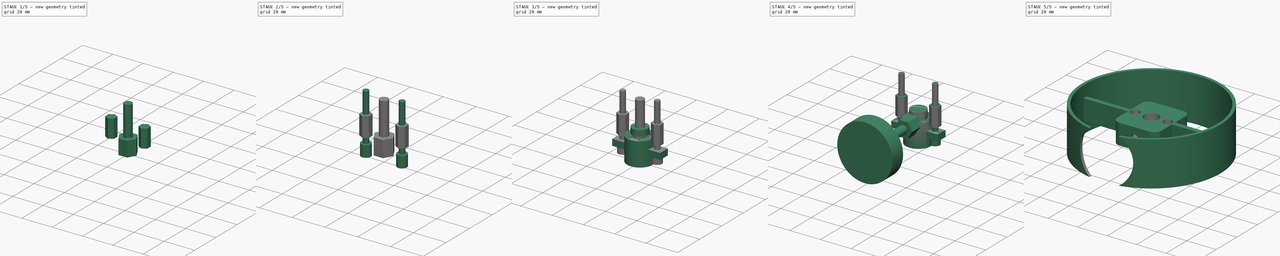
[diagram: build sequence overview — one tinted view per stage of 5, left to right]
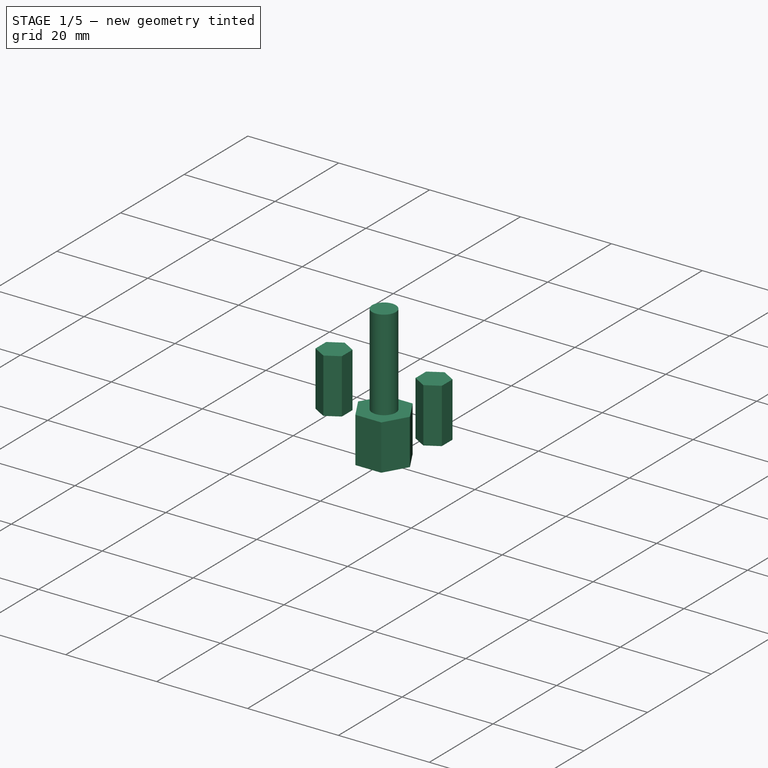
[diagram: stage 1 of 5 — iso view after this stage's code; geometry added in this stage tinted green]
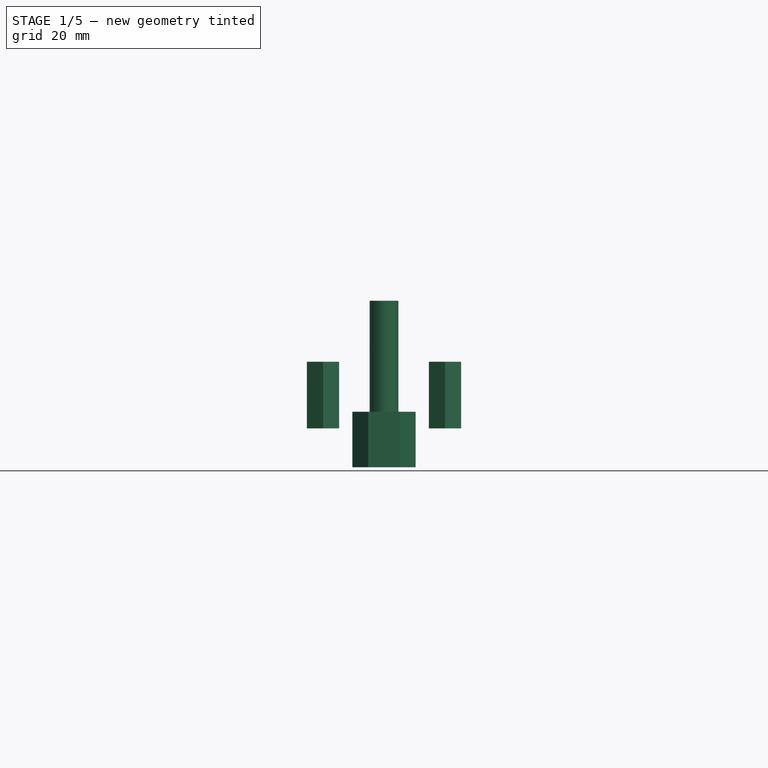
[diagram: stage 1 of 5 — front view after this stage's code; geometry added in this stage tinted green]
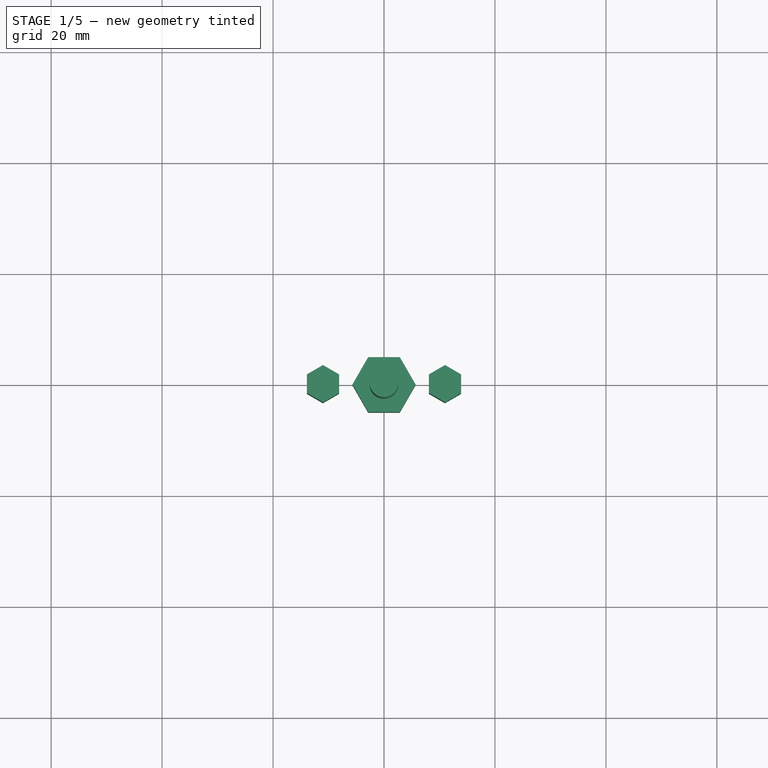
[diagram: stage 1 of 5 — top view after this stage's code; geometry added in this stage tinted green]
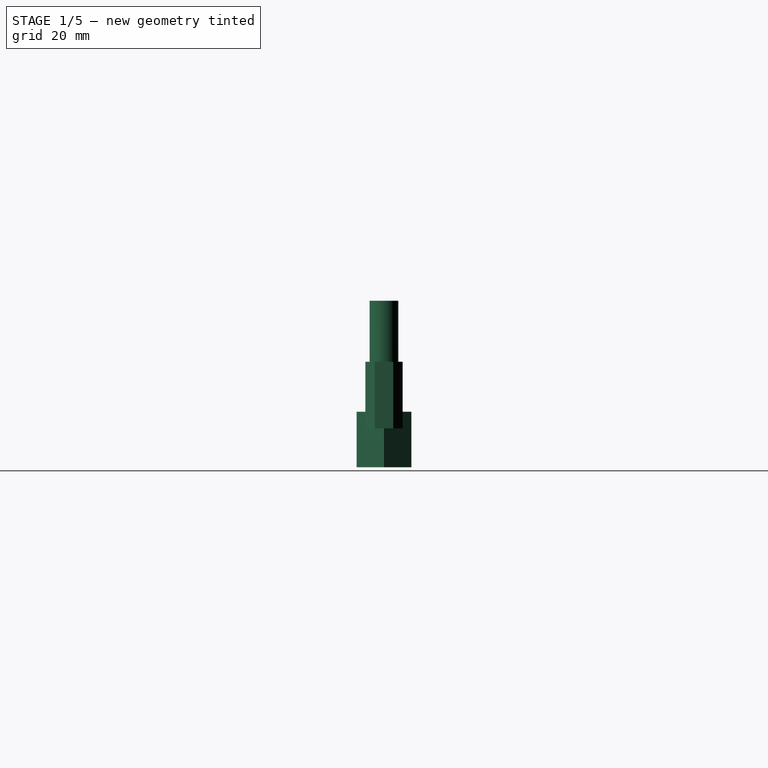
[diagram: stage 1 of 5 — right view after this stage's code; geometry added in this stage tinted green]
FCSTD DOCUMENT  (FreeCAD 0.16R6458 (Git))
Label: Art56MotorCoverRing
License: All rights reserved
LicenseURL: http://en.wikipedia.org/wiki/All_rights_reserved
objects: Part::FeaturePython×8, Part::Cylinder×6, Part::MultiFuse×4, Part::Prism×2, Sketcher::SketchObject×2, PartDesign::Pad×2, Part::Box×1, Part::Cut×1, App::DocumentObjectGroup×1
note: 28 computed .brp shape members not serialized (recipe doc carries the construction recipe); baked Part::Feature solids carry a one-line shape summary decoded from their .brp

FEATURE [Part::Prism] Prism  label="M3Nut"
  Circumradius = 3.35
  Height = 12
  Polygon = 6
FEATURE [Part::FeaturePython] Clone139  label="Clone of M3Nut005"  # Draft clone (typed FeaturePython)
  Objects = -> [Prism]
  Placement = pos=(11,0,7) rot=(0,0,1;0.523599rad)
  Scale = (1,1,1)
FEATURE [Part::FeaturePython] Clone140  label="Clone of M3Nut006"  # Draft clone (typed FeaturePython)
  Objects = -> [Prism]
  Placement = pos=(-11,0,7) rot=(0,0,1;0.523599rad)
  Scale = (1,1,1)
FEATURE [Part::Cylinder] Cylinder1030  label="M5Bolt"
  Angle = 360
  Height = 30
  Radius = 2.6
FEATURE [Part::Prism] Prism001  label="M5Nut"
  Circumradius = 5.7
  Height = 10
  Polygon = 6
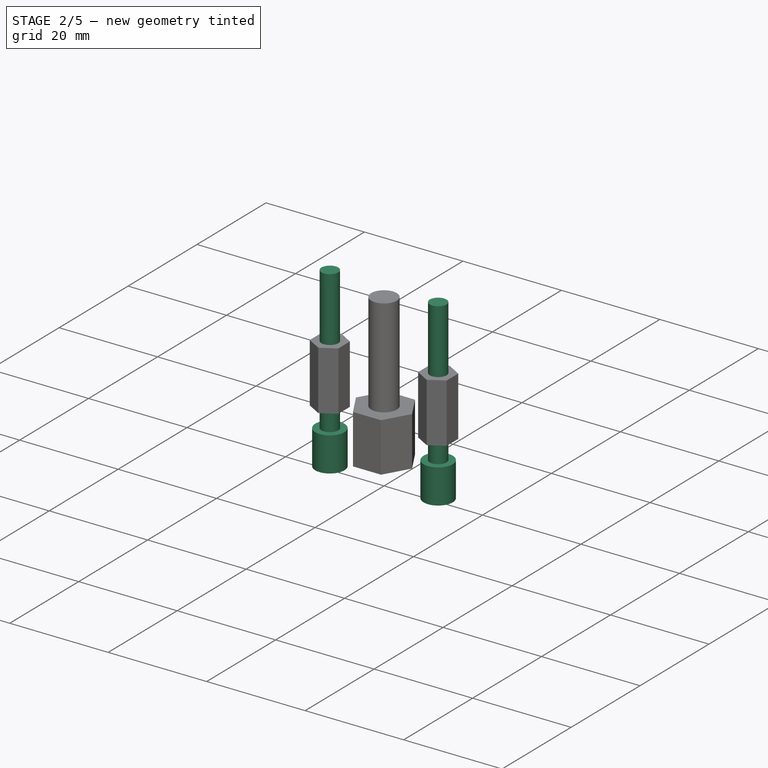
[diagram: stage 2 of 5 — iso view after this stage's code; geometry added in this stage tinted green]
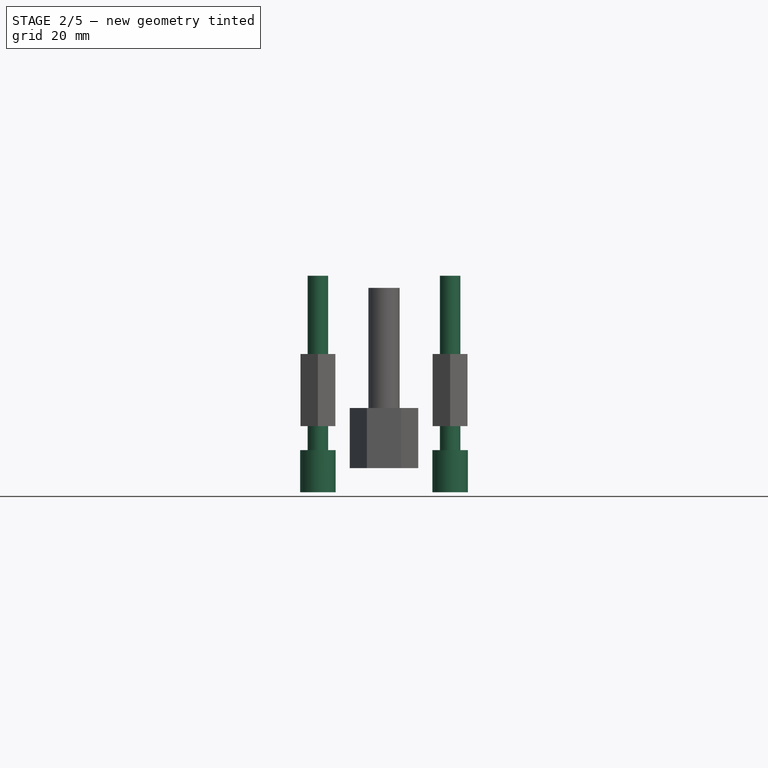
[diagram: stage 2 of 5 — front view after this stage's code; geometry added in this stage tinted green]
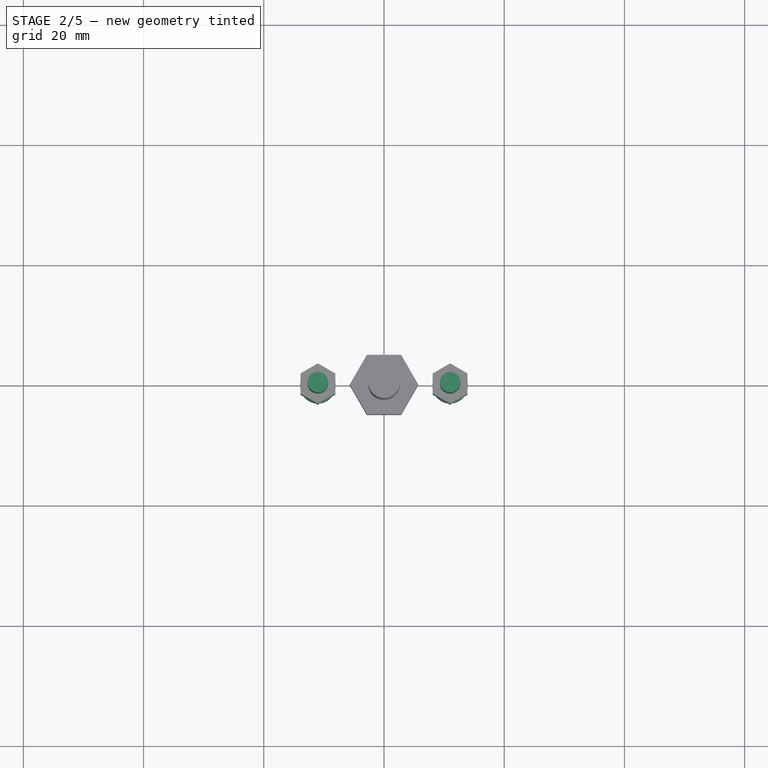
[diagram: stage 2 of 5 — top view after this stage's code; geometry added in this stage tinted green]
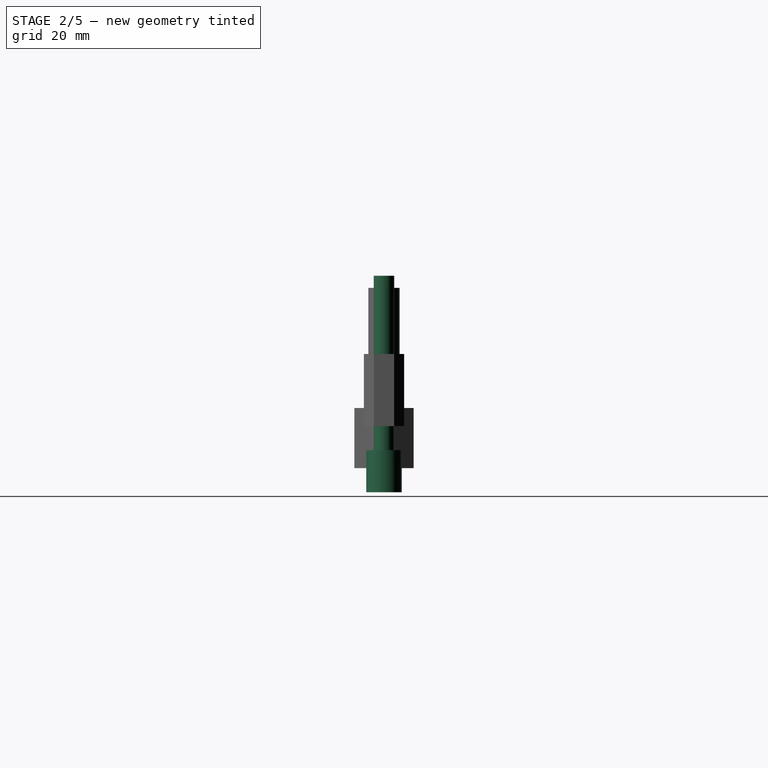
[diagram: stage 2 of 5 — right view after this stage's code; geometry added in this stage tinted green]
FEATURE [Part::Cylinder] Cylinder  label="M3BoltHead"
  Angle = 360
  Height = 7
  Radius = 2.95
FEATURE [Part::Cylinder] Cylinder001  label="M3BoltBody"
  Angle = 360
  Height = 30
  Placement = pos=(0,0,6) rot=(0,0,1;0rad)
  Radius = 1.7
FEATURE [Part::MultiFuse] Fusion  label="M3Bolt"
  Shapes = -> [Cylinder001,Cylinder]
FEATURE [Part::FeaturePython] Clone137  label="Clone of M3Bolt039"  # Draft clone (typed FeaturePython)
  Objects = -> [Fusion]
  Placement = pos=(11,0,-4) rot=(0,0,1;0rad)
  Scale = (1,1,1)
FEATURE [Part::FeaturePython] Clone138  label="Clone of M3Bolt040"  # Draft clone (typed FeaturePython)
  Objects = -> [Fusion]
  Placement = pos=(-11,0,-4) rot=(0,0,1;0rad)
  Scale = (1,1,1)
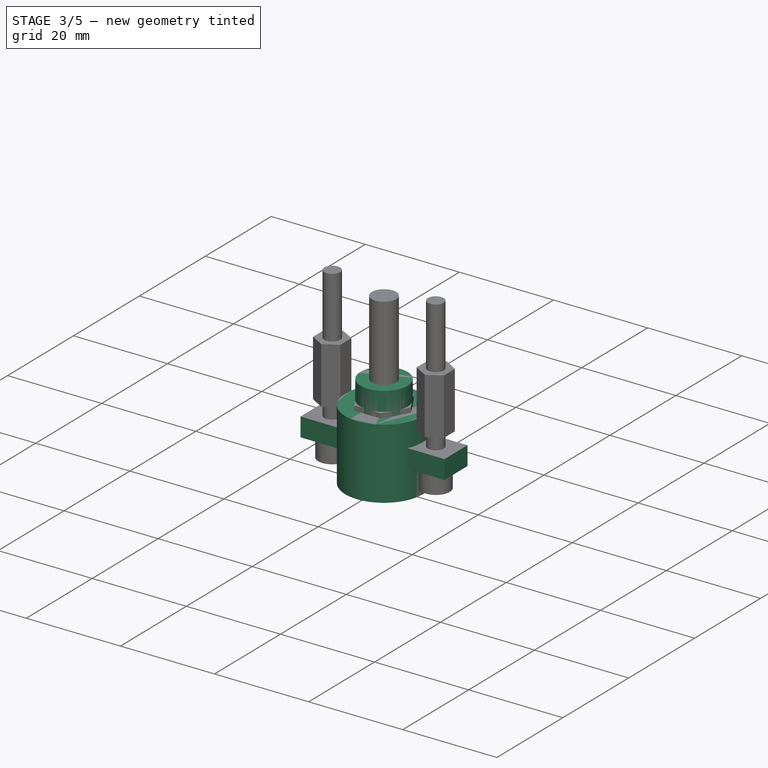
[diagram: stage 3 of 5 — iso view after this stage's code; geometry added in this stage tinted green]
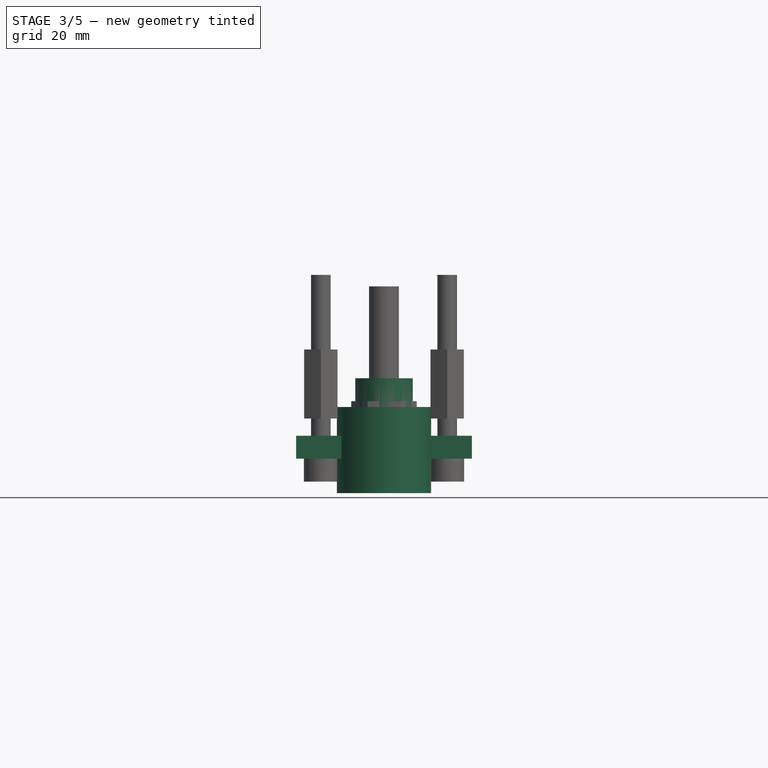
[diagram: stage 3 of 5 — front view after this stage's code; geometry added in this stage tinted green]
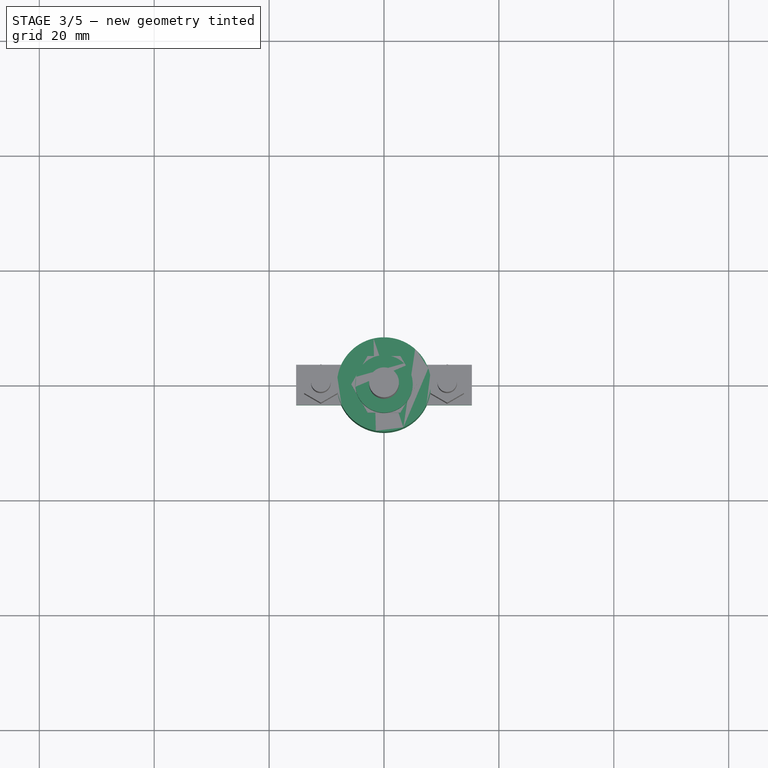
[diagram: stage 3 of 5 — top view after this stage's code; geometry added in this stage tinted green]
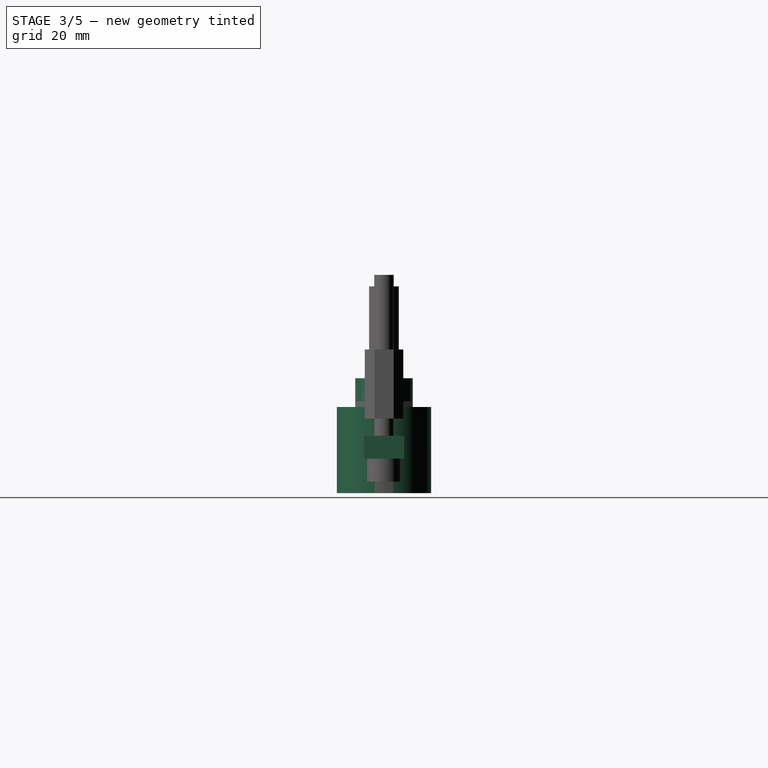
[diagram: stage 3 of 5 — right view after this stage's code; geometry added in this stage tinted green]
FEATURE [Part::Cylinder] Cylinder1003  label="Bearing625ZZMaster"
  Angle = 360
  Height = 15
  Radius = 8.2
FEATURE [Part::FeaturePython] Clone136  label="Clone of Bearing625ZZMaster"  # Draft clone (typed FeaturePython)
  Objects = -> [Cylinder1003]
  Placement = pos=(0,0,-6) rot=(0,0,1;0rad)
  Scale = (1,1,1)
FEATURE [Part::Cylinder] Cylinder1015  label="Cylinder021"
  Angle = 360
  Height = 10
  Placement = pos=(0,0,4) rot=(0,0,1;0rad)
  Radius = 5
FEATURE [Part::Box] Box251  label="Cube015"
  Height = 4
  Length = 30.6
  Placement = pos=(-15.3,-3.5,0) rot=(0,0,1;0rad)
  Width = 7
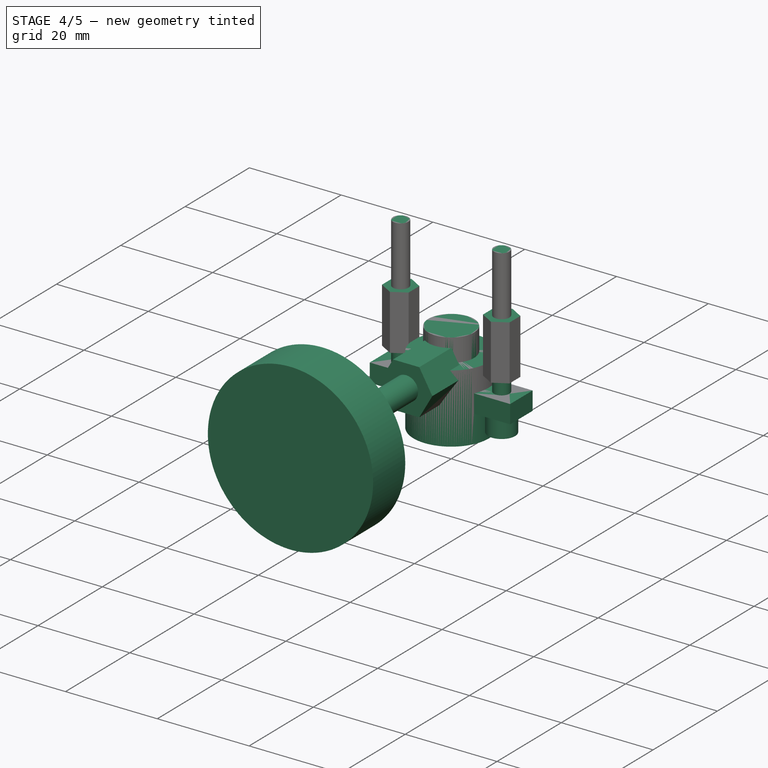
[diagram: stage 4 of 5 — iso view after this stage's code; geometry added in this stage tinted green]
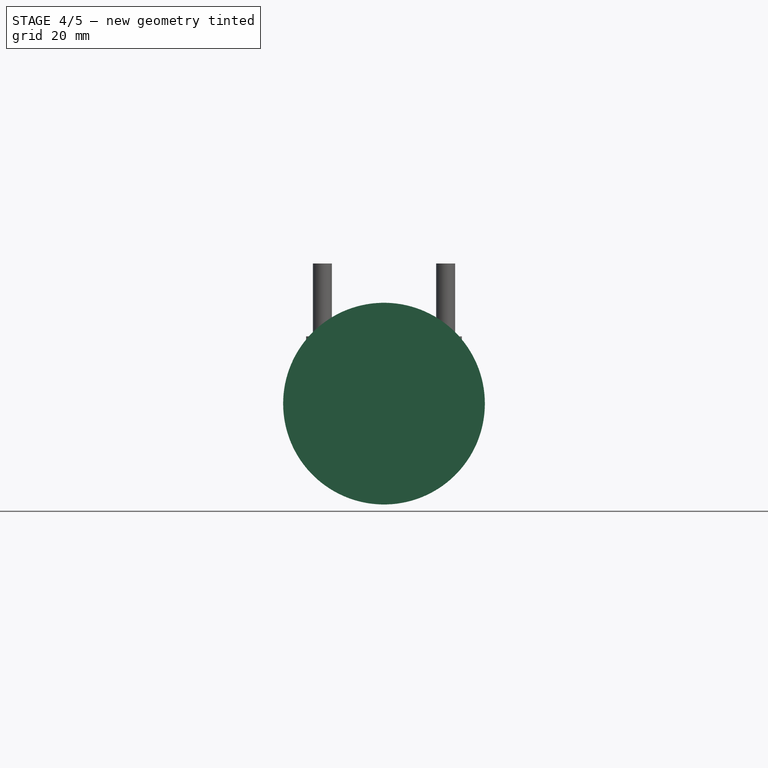
[diagram: stage 4 of 5 — front view after this stage's code; geometry added in this stage tinted green]
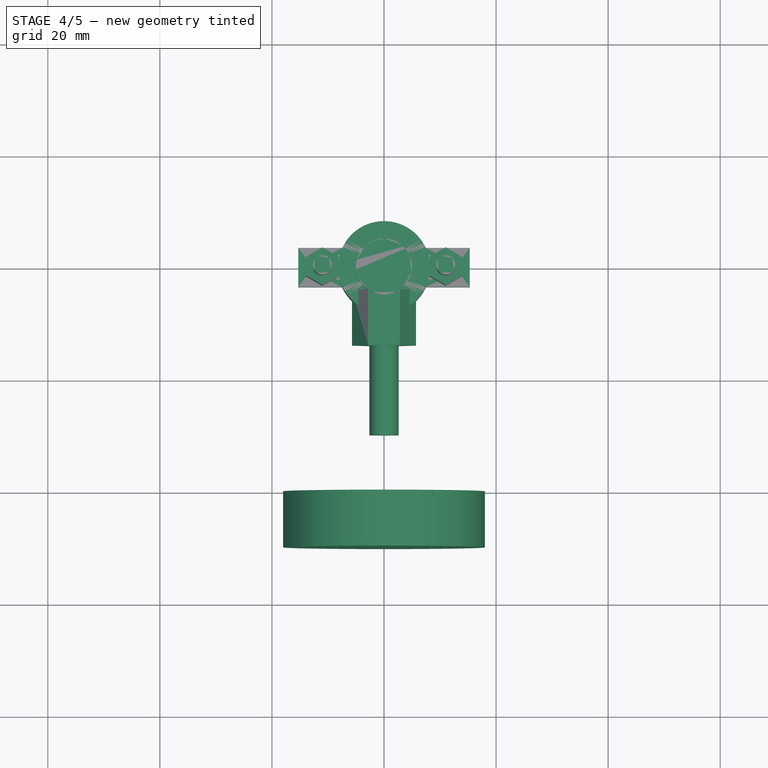
[diagram: stage 4 of 5 — top view after this stage's code; geometry added in this stage tinted green]
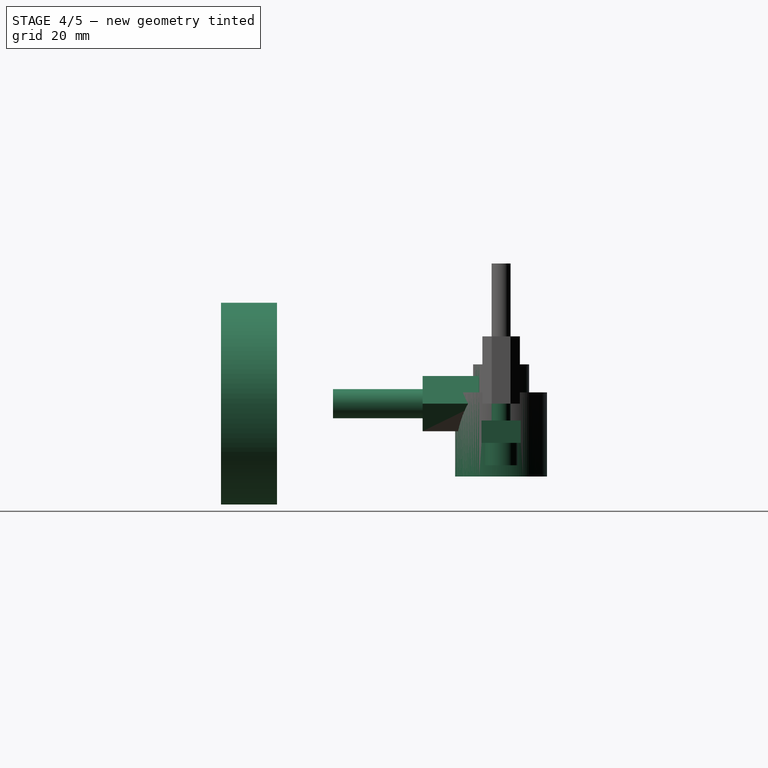
[diagram: stage 4 of 5 — right view after this stage's code; geometry added in this stage tinted green]
FEATURE [Part::MultiFuse] Fusion062  label="Bearing625zzHoles"
  Shapes = -> [Clone140,Clone139,Box251,Clone137,Clone138,Cylinder1015,Clone136]
FEATURE [Part::FeaturePython] Clone305  label="Clone of Bearing625zzHoles"  # Draft clone (typed FeaturePython)
  Objects = -> [Fusion062]
  Placement = pos=(0,0,-7) rot=(0,0,1;0rad)
  Scale = (1,1,1)
FEATURE [Part::Cylinder] Cylinder1031  label="Cylinder1073"
  Angle = 360
  Height = 10
  Placement = pos=(0,-40,0) rot=(1,0,0;1.5708rad)
  Radius = 18
FEATURE [Part::FeaturePython] Clone322  label="Clone of M5Nut"  # Draft clone (typed FeaturePython)
  Objects = -> [Prism001]
  Placement = pos=(0,-4,0) rot=(1,0,0;1.5708rad)
  Scale = (1,1,1)
FEATURE [Part::FeaturePython] Clone323  label="Clone of M5Bolt"  # Draft clone (typed FeaturePython)
  Objects = -> [Cylinder1030]
  Placement = pos=(0,0,0) rot=(1,0,0;1.5708rad)
  Scale = (1,1,1)
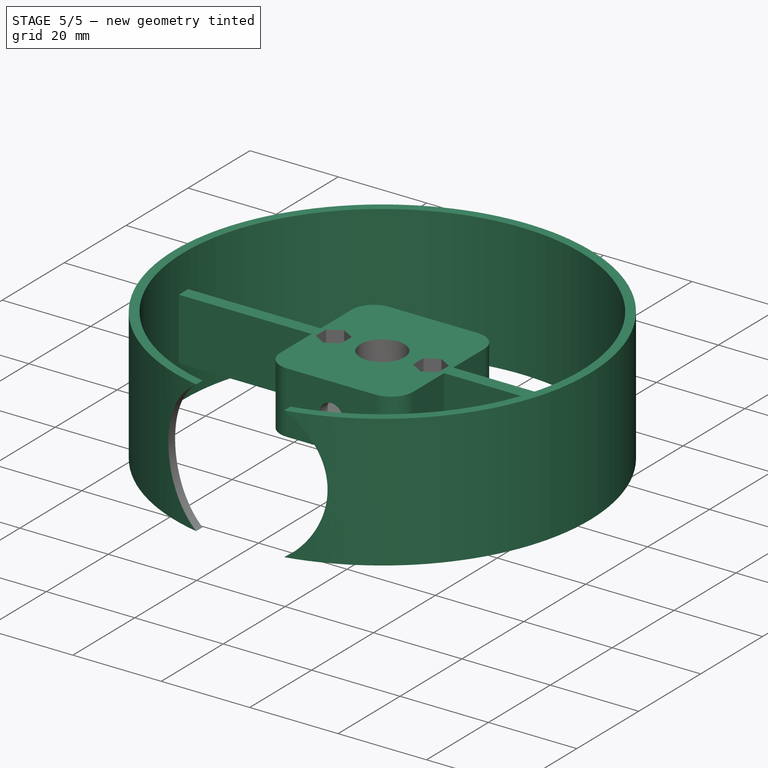
[diagram: stage 5 of 5 — iso view after this stage's code; geometry added in this stage tinted green]
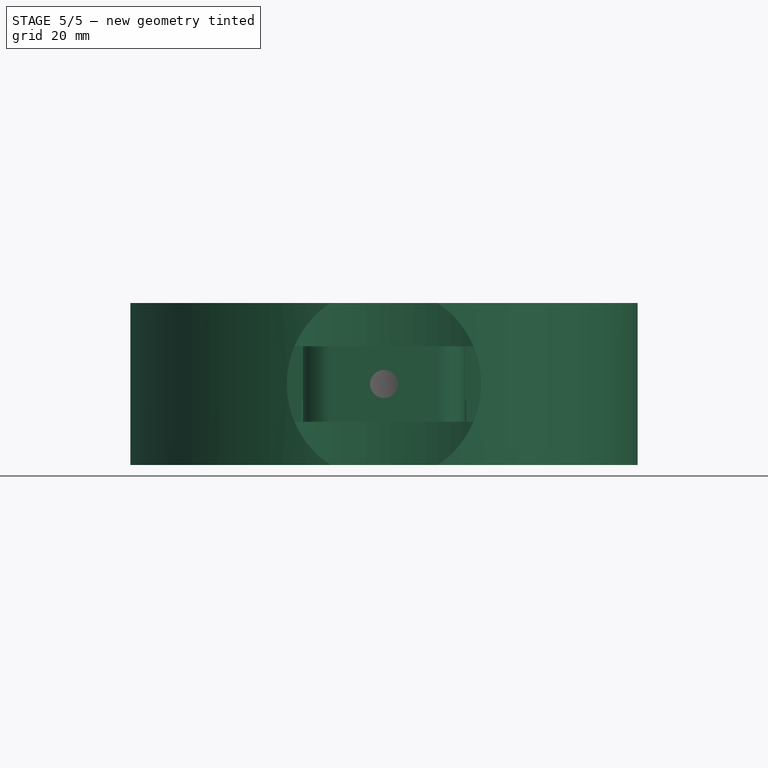
[diagram: stage 5 of 5 — front view after this stage's code; geometry added in this stage tinted green]
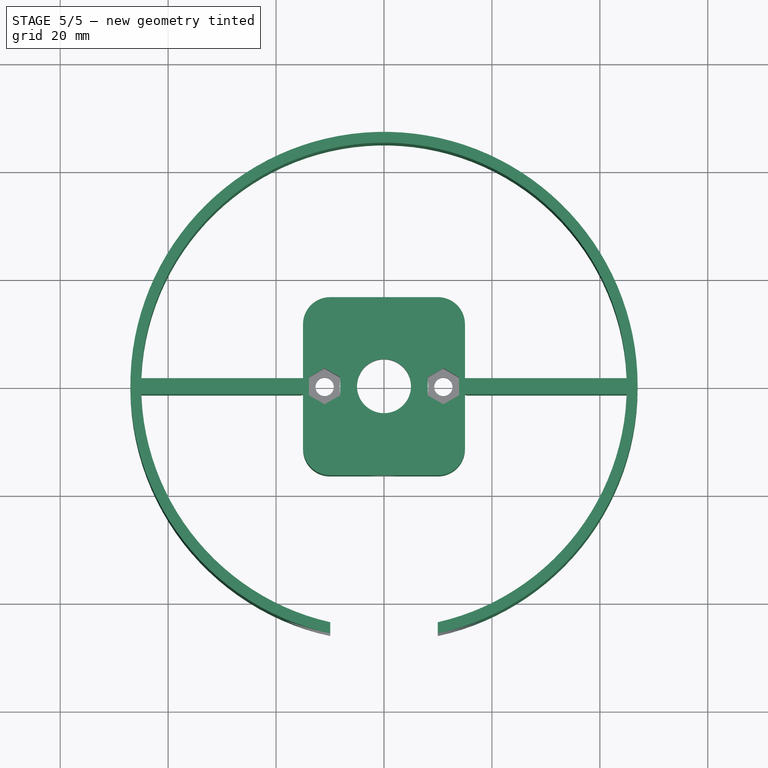
[diagram: stage 5 of 5 — top view after this stage's code; geometry added in this stage tinted green]
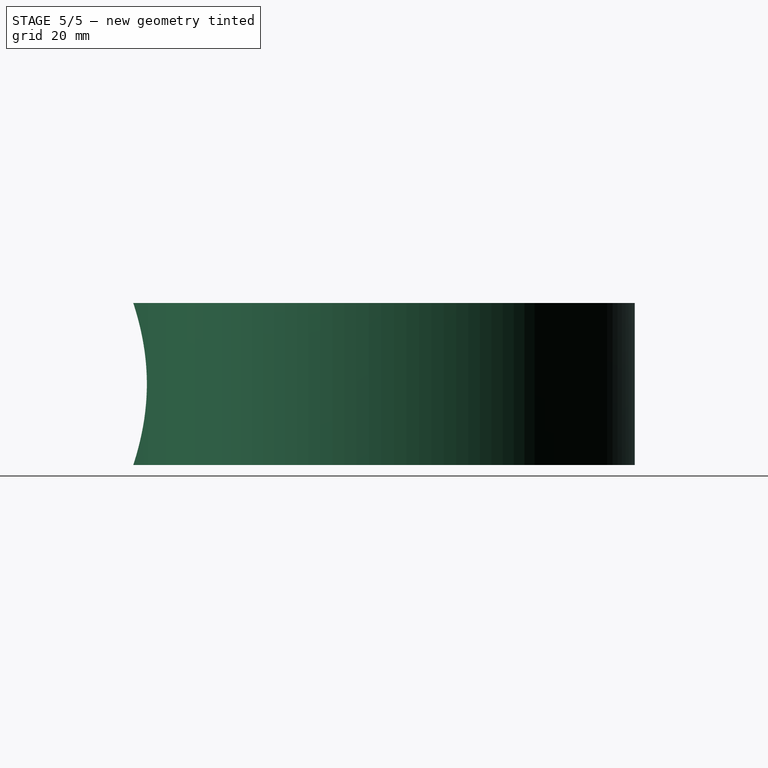
[diagram: stage 5 of 5 — right view after this stage's code; geometry added in this stage tinted green]
FEATURE [Sketcher::SketchObject] Sketch057
  sketch-geometry (2):
    g0: Circle CenterX=0 CenterY=0 CenterZ=0 NormalX=0 NormalY=0 NormalZ=1 Radius=47
    g1: Circle CenterX=0 CenterY=0 CenterZ=0 NormalX=0 NormalY=0 NormalZ=1 Radius=45
  constraints (4):
    c: Coincident(g0,g-1)
    c: Coincident(g1,g-1)
    c: Radius(g1) = 45
    c: Radius(g0) = 47
FEATURE [PartDesign::Pad] Pad040
  Length = 30
  Length2 = 100
  Midplane = true
  Sketch = -> Sketch057
  Type = 0
FEATURE [Sketcher::SketchObject] Sketch058
  sketch-geometry (17):
    g0: LineSegment StartX=-10 StartY=16.5 StartZ=0 EndX=10 EndY=16.5 EndZ=0
    g1: LineSegment StartX=15 StartY=11.5 StartZ=0 EndX=15 EndY=1.5 EndZ=0
    g2: LineSegment StartX=9.99997 StartY=-16.5 StartZ=0 EndX=-10 EndY=-16.5 EndZ=0
    g3: LineSegment StartX=-15 StartY=-11.5 StartZ=0 EndX=-15 EndY=-1.5 EndZ=0
    g4: ArcOfCircle CenterX=-10 CenterY=11.5 CenterZ=0 NormalX=0 NormalY=0 NormalZ=1 Radius=5 StartAngle=1.5708 EndAngle=3.14159
    g5: ArcOfCircle CenterX=-10 CenterY=-11.5 CenterZ=0 NormalX=0 NormalY=0 NormalZ=1 Radius=5 StartAngle=3.14159 EndAngle=4.71239
    g6: ArcOfCircle CenterX=10 CenterY=-11.5 CenterZ=0 NormalX=0 NormalY=0 NormalZ=1 Radius=5 StartAngle=4.71238 EndAngle=6.28318
    g7: ArcOfCircle CenterX=10 CenterY=11.5 CenterZ=0 NormalX=0 NormalY=0 NormalZ=1 Radius=5 StartAngle=5.17993e-07 EndAngle=1.5708
    g8: LineSegment StartX=15 StartY=1.5 StartZ=0 EndX=46 EndY=1.5 EndZ=0
    g9: LineSegment StartX=46 StartY=1.5 StartZ=0 EndX=46 EndY=-1.5 EndZ=0
    g10: LineSegment StartX=46 StartY=-1.5 StartZ=0 EndX=15 EndY=-1.5 EndZ=0
    g11: LineSegment StartX=-15 StartY=1.5 StartZ=0 EndX=-46 EndY=1.5 EndZ=0
    g12: LineSegment StartX=-46 StartY=1.5 StartZ=0 EndX=-46 EndY=-1.5 EndZ=0
    g13: LineSegment StartX=-46 StartY=-1.5 StartZ=0 EndX=-15 EndY=-1.5 EndZ=0
    g14: LineSegment StartX=15 StartY=-1.5 StartZ=0 EndX=15 EndY=-11.5 EndZ=0
    g15: LineSegment StartX=-15 StartY=1.5 StartZ=0 EndX=-15 EndY=11.5 EndZ=0
    g16: LineSegment [constr] StartX=15 StartY=-1.5 StartZ=0 EndX=-15 EndY=-1.5 EndZ=0
  constraints (52):
    c: Horizontal(g0)
    c: Horizontal(g2)
    c: Vertical(g1)
    c: Vertical(g3)
    c: Coincident(g4,g0)
    c: Coincident(g4,g15)
    c: Coincident(g5,g3)
    c: Coincident(g5,g2)
    c: Coincident(g6,g2)
    c: Coincident(g6,g14)
    c: Coincident(g7,g0)
    c: Coincident(g7,g1)
    c: Tangent(g0,g7)
    c: Tangent(g1,g7)
    c: Tangent(g2,g6)
    c: Tangent(g5,g3)
    c: Tangent(g2,g5)
    c: Tangent(g4,g3)
    c: Tangent(g0,g4)
    c: Tangent(g1,g6)
    c: Equal(g6,g5)
    c: Equal(g5,g4)
    c: Equal(g4,g7)
    c: Radius(g4) = 5
    c: DistanceX(g15,g1) = 30
    c: DistanceY(g0,g2) = -33
    c: DistanceY(g-1,g0) = 16.5
    c: DistanceX(g-1,g14) = 15
    c: Coincident(g8,g9)
    c: Coincident(g9,g10)
    c: Horizontal(g8)
    c: Horizontal(g10)
    c: Vertical(g9)
    c: Coincident(g11,g12)
    c: Coincident(g12,g13)
    c: Horizontal(g11)
    c: Horizontal(g13)
    c: Vertical(g12)
    c: DistanceX(g-1,g8) = 46
    c: DistanceY(g9) = -3
    c: DistanceY(g-1,g9) = -1.5
    c: Coincident(g1,g8)
    c: Tangent(g1,g14)
    c: Coincident(g10,g14)
    c: Coincident(g15,g11)
    c: Tangent(g3,g15)
    c: Coincident(g13,g3)
    c: Equal(g10,g13)
    c: Equal(g12,g9)
    c: Coincident(g16,g10)
    c: Coincident(g16,g3)
    c: Horizontal(g16)
FEATURE [PartDesign::Pad] Pad041
  Length = 14
  Length2 = 100
  Midplane = true
  Sketch = -> Sketch058
  Type = 0
FEATURE [Part::MultiFuse] Fusion108
  Shapes = -> [Pad040,Pad041]
FEATURE [Part::MultiFuse] Fusion119
  Shapes = -> [Clone323,Clone322,Clone305,Cylinder1031]
FEATURE [Part::Cut] Cut100  label="Art56CoverRing"
  Base = -> Fusion108
  Tool = -> Fusion119
FEATURE [App::DocumentObjectGroup] Group  label="Master"
  Group = -> [Fusion,Prism,Cylinder1003,Fusion062,Cylinder1030,Prism001]
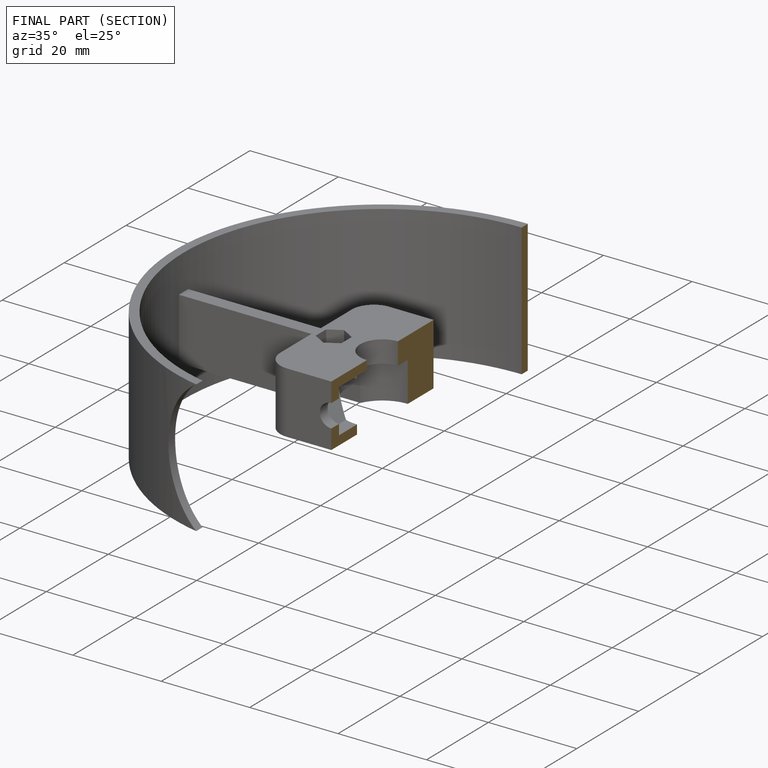
[diagram: finished part — half-section view (interior)]
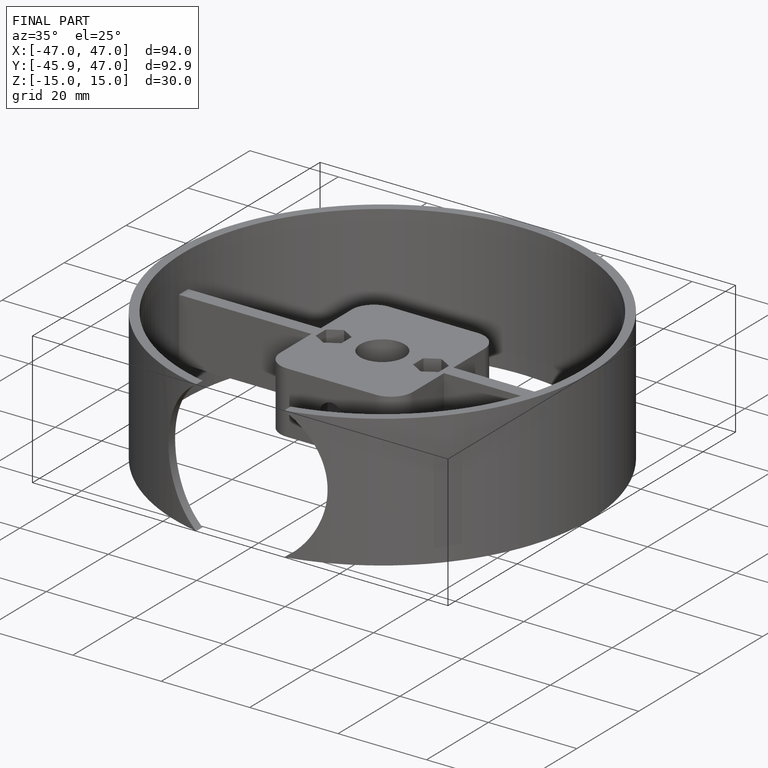
[diagram: finished part — iso view with bounding-box wireframe]
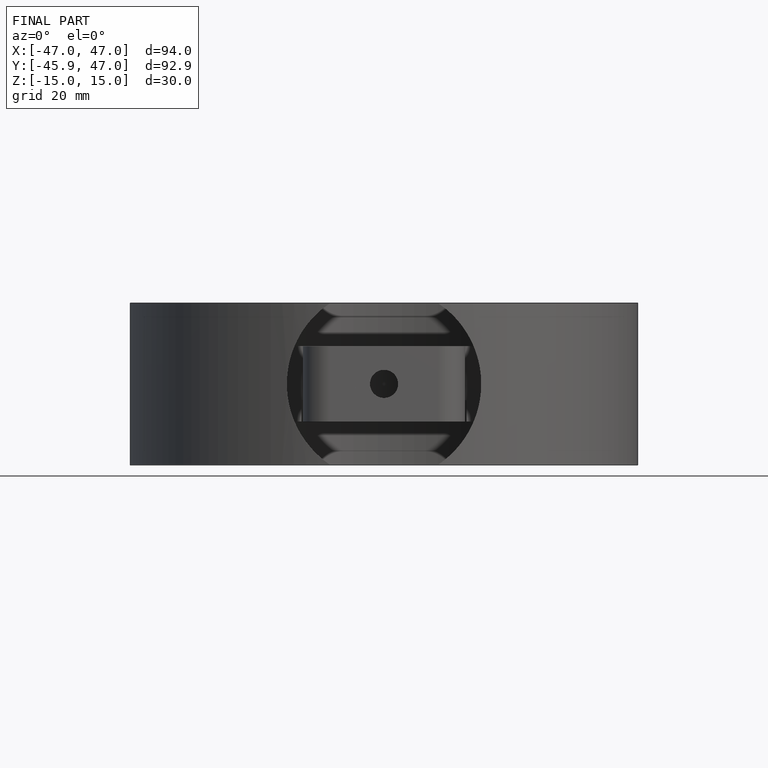
[diagram: finished part — front view with bounding-box wireframe]
